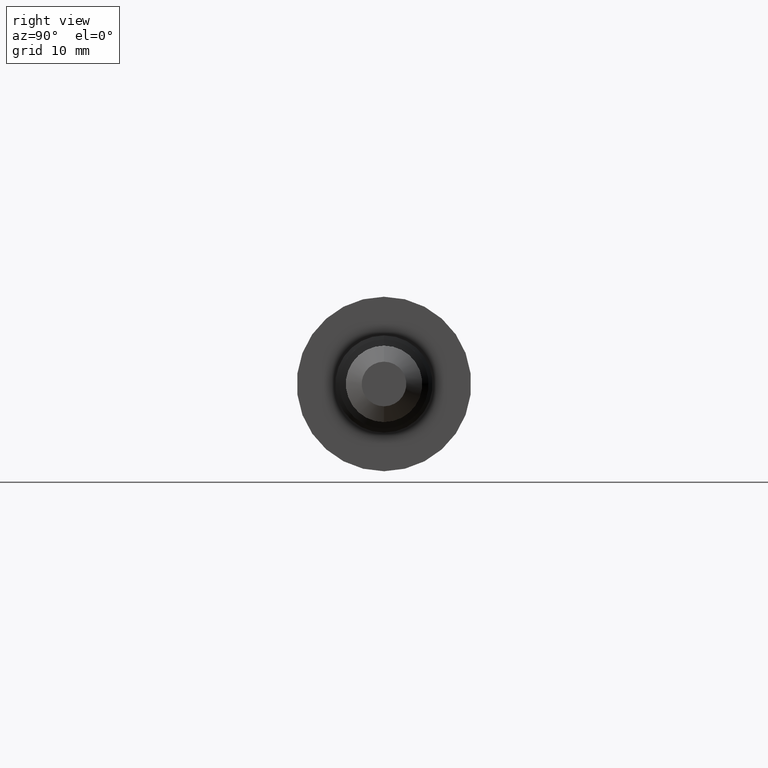
[diagram: clean part render]
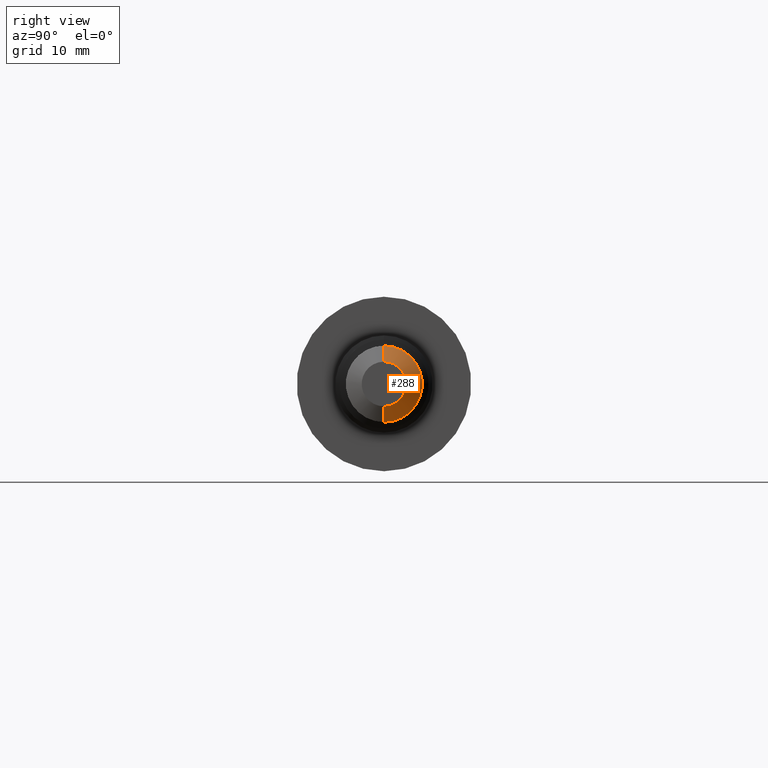
[diagram: same view with one face highlighted and labeled with its STEP entity id]
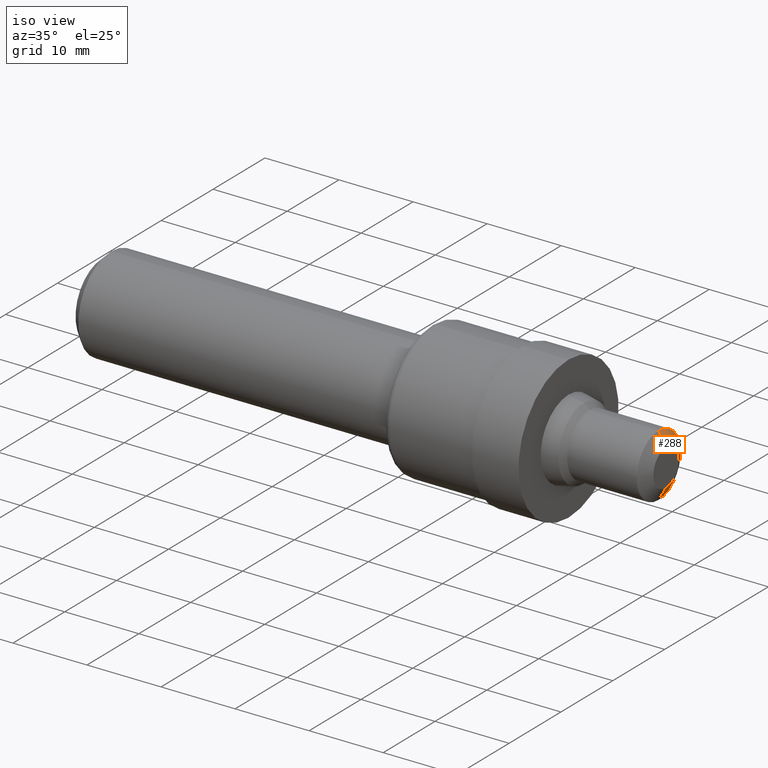
[diagram: same view with one face highlighted and labeled with its STEP entity id]
A machine part, right view. The second image highlights one B-rep face of the part: STEP entity #288.
A second angle (iso view) of the same face is appended — the face is thin or edge-on in the first view.
In plain terms, the highlighted conical surface has half-angle 60 deg.
Its self-contained STEP definition (entity closure, byte-faithful):
#21 = DIRECTION ( 'NONE',  ( -1.000000000000000000, -0.0000000000000000000, -0.0000000000000000000 ) ) ;
#47 = VECTOR ( 'NONE', #131, 39.37007874015748900 ) ;
#57 = VECTOR ( 'NONE', #611, 39.37007874015748900 ) ;
#69 = CARTESIAN_POINT ( 'NONE',  ( 3.000000000000000400, 0.0000000000000000000, 0.09721796769724436200 ) ) ;
#91 = CONICAL_SURFACE ( 'NONE', #202, 0.09721796769724436200, 1.047197551196600100 ) ;
#122 = DIRECTION ( 'NONE',  ( -1.000000000000000000, -0.0000000000000000000, -0.0000000000000000000 ) ) ;
#131 = DIRECTION ( 'NONE',  ( -0.4999999999999979500, 1.060575238724908000E-016, -0.8660254037844397100 ) ) ;
#141 = ORIENTED_EDGE ( 'NONE', *, *, #146, .T. ) ;
#146 = EDGE_CURVE ( 'NONE', #584, #459, #210, .T. ) ;
#160 = EDGE_CURVE ( 'NONE', #584, #600, #197, .T. ) ;
#169 = CARTESIAN_POINT ( 'NONE',  ( 3.000000000000000400, 0.0000000000000000000, 0.0000000000000000000 ) ) ;
#172 = EDGE_CURVE ( 'NONE', #600, #365, #231, .T. ) ;
#197 = LINE ( 'NONE', #69, #57 ) ;
#199 = EDGE_CURVE ( 'NONE', #459, #365, #473, .T. ) ;
#202 = AXIS2_PLACEMENT_3D ( 'NONE', #669, #21, #610 ) ;
#210 = CIRCLE ( 'NONE', #546, 0.09721796769724436200 ) ;
#231 = CIRCLE ( 'NONE', #516, 0.1665000000000000100 ) ;
#265 = CARTESIAN_POINT ( 'NONE',  ( 3.000000000000000400, 1.190576729600410900E-017, -0.09721796769724436200 ) ) ;
#288 = ADVANCED_FACE ( 'NONE', ( #676 ), #91, .T. ) ;
#299 = CARTESIAN_POINT ( 'NONE',  ( 3.000000000000000400, 1.614806825090377000E-017, -0.09721796769724436200 ) ) ;
#327 = CARTESIAN_POINT ( 'NONE',  ( 2.960000000000000000, 0.0000000000000000000, 0.1665000000000000100 ) ) ;
#338 = DIRECTION ( 'NONE',  ( 0.0000000000000000000, 0.0000000000000000000, 1.000000000000000000 ) ) ;
#365 = VERTEX_POINT ( 'NONE', #565 ) ;
#394 = DIRECTION ( 'NONE',  ( -1.000000000000000000, -0.0000000000000000000, -0.0000000000000000000 ) ) ;
#398 = CARTESIAN_POINT ( 'NONE',  ( 2.960000000000000000, 0.0000000000000000000, 0.0000000000000000000 ) ) ;
#459 = VERTEX_POINT ( 'NONE', #299 ) ;
#473 = LINE ( 'NONE', #265, #47 ) ;
#516 = AXIS2_PLACEMENT_3D ( 'NONE', #398, #394, #338 ) ;
#521 = ORIENTED_EDGE ( 'NONE', *, *, #199, .T. ) ;
#546 = AXIS2_PLACEMENT_3D ( 'NONE', #169, #122, #663 ) ;
#547 = EDGE_LOOP ( 'NONE', ( #141, #521, #568, #607 ) ) ;
#565 = CARTESIAN_POINT ( 'NONE',  ( 2.960000000000000000, 2.039036920580343200E-017, -0.1665000000000000100 ) ) ;
#568 = ORIENTED_EDGE ( 'NONE', *, *, #172, .F. ) ;
#584 = VERTEX_POINT ( 'NONE', #594 ) ;
#594 = CARTESIAN_POINT ( 'NONE',  ( 3.000000000000000400, 0.0000000000000000000, 0.09721796769724436200 ) ) ;
#600 = VERTEX_POINT ( 'NONE', #327 ) ;
#607 = ORIENTED_EDGE ( 'NONE', *, *, #160, .F. ) ;
#610 = DIRECTION ( 'NONE',  ( 0.0000000000000000000, 0.0000000000000000000, 1.000000000000000000 ) ) ;
#611 = DIRECTION ( 'NONE',  ( -0.4999999999999979500, 0.0000000000000000000, 0.8660254037844397100 ) ) ;
#663 = DIRECTION ( 'NONE',  ( 0.0000000000000000000, 0.0000000000000000000, 1.000000000000000000 ) ) ;
#669 = CARTESIAN_POINT ( 'NONE',  ( 3.000000000000000400, 0.0000000000000000000, 0.0000000000000000000 ) ) ;
#676 = FACE_OUTER_BOUND ( 'NONE', #547, .T. ) ;